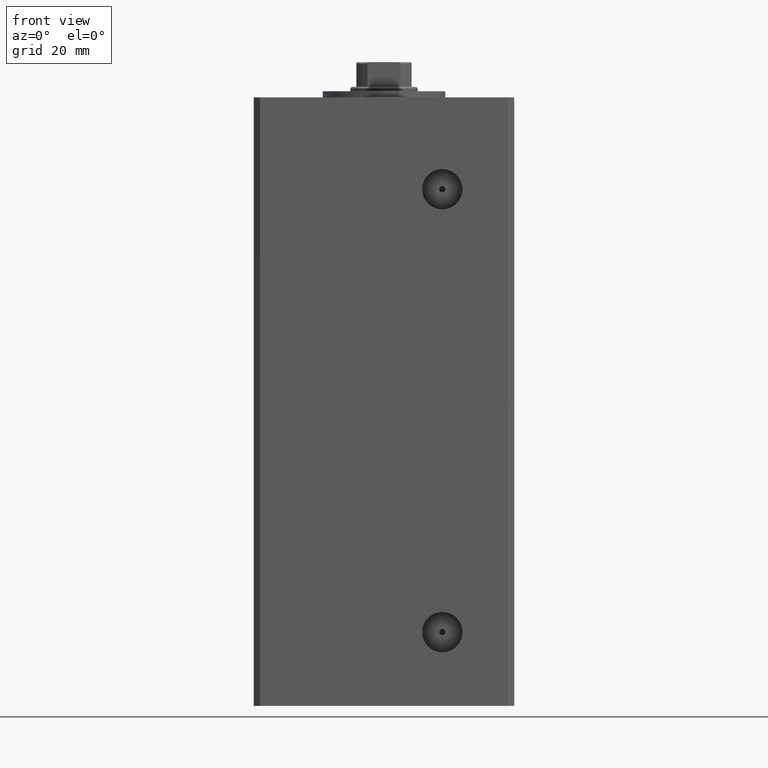
[diagram: clean part render]
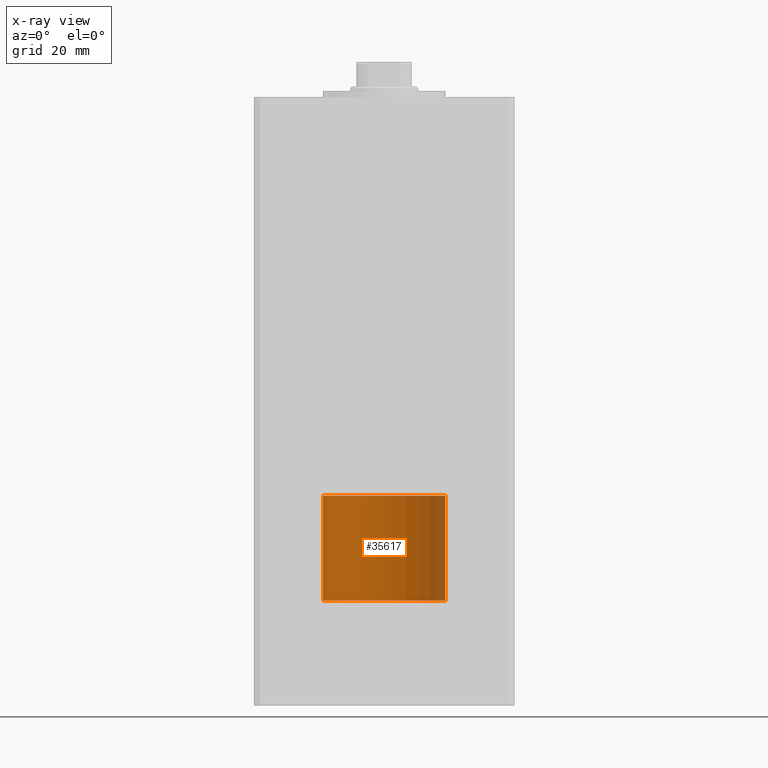
[diagram: x-ray — body ghosted, one internal face saturated and labeled with its STEP entity id]
A machine part, front view, then the same camera in x-ray: the body is ghosted and one INTERNAL B-rep face — a face not visible from any outside direction — is saturated and labeled: STEP entity #35617.
In plain terms, the highlighted cylindrical surface (partial cylindrical patch) has radius 20 mm, axis along (-0, -0, -1).
Its self-contained STEP definition (entity closure, byte-faithful):
#538 = AXIS2_PLACEMENT_3D ( 'NONE', #42545, #47006, #26981 ) ;
#1526 = LINE ( 'NONE', #30574, #36385 ) ;
#1755 = DIRECTION ( 'NONE',  ( 0.000000000000000000, 0.000000000000000000, 1.000000000000000000 ) ) ;
#1817 = DIRECTION ( 'NONE',  ( -1.000000000000000000, 0.000000000000000000, 0.000000000000000000 ) ) ;
#2821 = EDGE_CURVE ( 'NONE', #30612, #6755, #37611, .T. ) ;
#5423 = VERTEX_POINT ( 'NONE', #35311 ) ;
#5589 = CIRCLE ( 'NONE', #538, 20.00000000000000000 ) ;
#6755 = VERTEX_POINT ( 'NONE', #41338 ) ;
#6841 = CARTESIAN_POINT ( 'NONE',  ( 20.00000000000000000, 2.449293598294706513E-15, 34.25000000000000000 ) ) ;
#10747 = DIRECTION ( 'NONE',  ( -0.000000000000000000, -0.000000000000000000, -1.000000000000000000 ) ) ;
#17647 = VERTEX_POINT ( 'NONE', #35932 ) ;
#18535 = EDGE_LOOP ( 'NONE', ( #40015, #28496, #24704, #27651 ) ) ;
#20833 = DIRECTION ( 'NONE',  ( 1.000000000000000000, 0.000000000000000000, 0.000000000000000000 ) ) ;
#21642 = CYLINDRICAL_SURFACE ( 'NONE', #43602, 20.00000000000000000 ) ;
#22770 = EDGE_CURVE ( 'NONE', #30612, #17647, #43797, .T. ) ;
#23743 = CARTESIAN_POINT ( 'NONE',  ( 20.00000000000000000, 2.449293598294706513E-15, 34.25000000000000000 ) ) ;
#24704 = ORIENTED_EDGE ( 'NONE', *, *, #31650, .T. ) ;
#26981 = DIRECTION ( 'NONE',  ( 1.000000000000000000, 0.000000000000000000, 0.000000000000000000 ) ) ;
#27651 = ORIENTED_EDGE ( 'NONE', *, *, #51536, .F. ) ;
#28496 = ORIENTED_EDGE ( 'NONE', *, *, #22770, .T. ) ;
#30090 = FACE_OUTER_BOUND ( 'NONE', #18535, .T. ) ;
#30574 = CARTESIAN_POINT ( 'NONE',  ( -20.00000000000000000, 0.000000000000000000, 34.25000000000000000 ) ) ;
#30612 = VERTEX_POINT ( 'NONE', #6841 ) ;
#31650 = EDGE_CURVE ( 'NONE', #17647, #5423, #5589, .T. ) ;
#33279 = DIRECTION ( 'NONE',  ( -0.000000000000000000, -0.000000000000000000, -1.000000000000000000 ) ) ;
#33790 = CARTESIAN_POINT ( 'NONE',  ( 0.000000000000000000, 0.000000000000000000, 34.25000000000000000 ) ) ;
#35311 = CARTESIAN_POINT ( 'NONE',  ( -20.00000000000000000, 0.000000000000000000, 0.000000000000000000 ) ) ;
#35617 = ADVANCED_FACE ( 'NONE', ( #30090 ), #21642, .T. ) ;
#35932 = CARTESIAN_POINT ( 'NONE',  ( 20.00000000000000000, 2.449293598294706513E-15, 0.000000000000000000 ) ) ;
#36385 = VECTOR ( 'NONE', #10747, 1000.000000000000000 ) ;
#37611 = CIRCLE ( 'NONE', #50236, 20.00000000000000000 ) ;
#37940 = CARTESIAN_POINT ( 'NONE',  ( 0.000000000000000000, 0.000000000000000000, 34.25000000000000000 ) ) ;
#40015 = ORIENTED_EDGE ( 'NONE', *, *, #2821, .F. ) ;
#41338 = CARTESIAN_POINT ( 'NONE',  ( -20.00000000000000000, 0.000000000000000000, 34.25000000000000000 ) ) ;
#42431 = VECTOR ( 'NONE', #51961, 1000.000000000000000 ) ;
#42545 = CARTESIAN_POINT ( 'NONE',  ( 0.000000000000000000, 0.000000000000000000, 0.000000000000000000 ) ) ;
#43602 = AXIS2_PLACEMENT_3D ( 'NONE', #33790, #33279, #1817 ) ;
#43797 = LINE ( 'NONE', #23743, #42431 ) ;
#47006 = DIRECTION ( 'NONE',  ( 0.000000000000000000, 0.000000000000000000, 1.000000000000000000 ) ) ;
#50236 = AXIS2_PLACEMENT_3D ( 'NONE', #37940, #1755, #20833 ) ;
#51536 = EDGE_CURVE ( 'NONE', #6755, #5423, #1526, .T. ) ;
#51961 = DIRECTION ( 'NONE',  ( -0.000000000000000000, -0.000000000000000000, -1.000000000000000000 ) ) ;